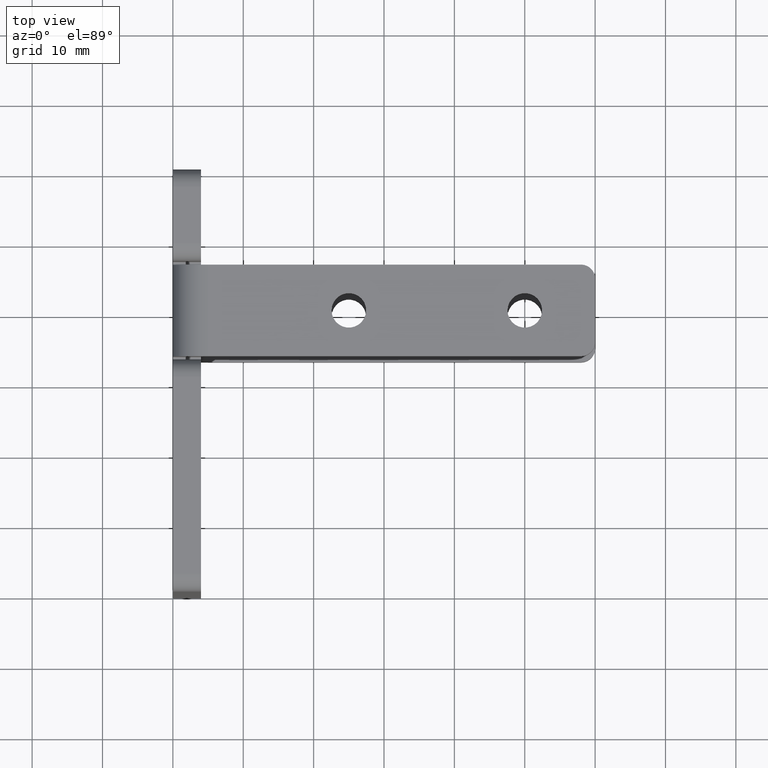
[diagram: clean part render]
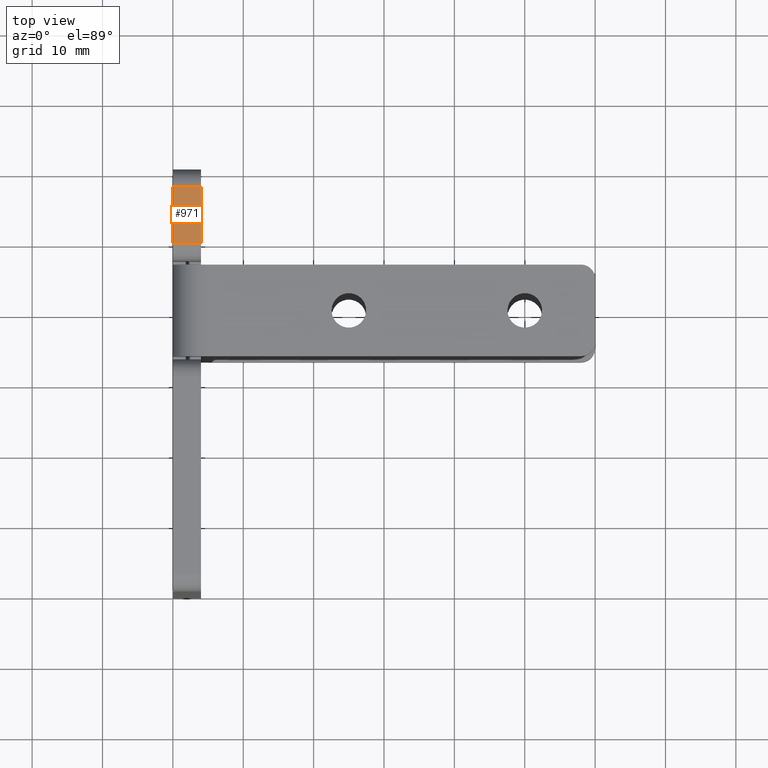
[diagram: same view with one face highlighted and labeled with its STEP entity id]
A machine part, top view. The second image highlights one B-rep face of the part: STEP entity #971.
In plain terms, the highlighted planar face has unit normal (0, -0, 1).
Its self-contained STEP definition (entity closure, byte-faithful):
#25=PLANE('',#1048);
#56=FACE_OUTER_BOUND('',#111,.T.);
#111=EDGE_LOOP('',(#657,#658,#659,#660));
#175=LINE('',#1470,#268);
#177=LINE('',#1476,#270);
#178=LINE('',#1478,#271);
#179=LINE('',#1479,#272);
#268=VECTOR('',#1159,10.);
#270=VECTOR('',#1165,10.);
#271=VECTOR('',#1166,10.);
#272=VECTOR('',#1167,10.);
#415=VERTEX_POINT('',#1467);
#416=VERTEX_POINT('',#1469);
#418=VERTEX_POINT('',#1475);
#419=VERTEX_POINT('',#1477);
#508=EDGE_CURVE('',#415,#416,#175,.T.);
#511=EDGE_CURVE('',#415,#418,#177,.T.);
#512=EDGE_CURVE('',#419,#418,#178,.T.);
#513=EDGE_CURVE('',#419,#416,#179,.T.);
#657=ORIENTED_EDGE('',*,*,#508,.F.);
#658=ORIENTED_EDGE('',*,*,#511,.T.);
#659=ORIENTED_EDGE('',*,*,#512,.F.);
#660=ORIENTED_EDGE('',*,*,#513,.T.);
#971=ADVANCED_FACE('',(#56),#25,.T.);
#1048=AXIS2_PLACEMENT_3D('',#1474,#1163,#1164);
#1159=DIRECTION('',(-1.,0.,0.));
#1163=DIRECTION('center_axis',(0.,-7.40148683083438E-17,1.));
#1164=DIRECTION('ref_axis',(1.,0.,0.));
#1165=DIRECTION('',(0.,1.,7.40148683083438E-17));
#1166=DIRECTION('',(1.,0.,0.));
#1167=DIRECTION('',(0.,-1.,-7.40148683083438E-17));
#1467=CARTESIAN_POINT('',(4.,19.5000000000001,30.));
#1469=CARTESIAN_POINT('',(0.,19.5000000000001,30.));
#1470=CARTESIAN_POINT('',(0.,19.5000000000001,30.));
#1474=CARTESIAN_POINT('Origin',(0.,-30.,30.));
#1475=CARTESIAN_POINT('',(4.,27.5,30.));
#1476=CARTESIAN_POINT('',(4.,30.,30.));
#1477=CARTESIAN_POINT('',(0.,27.5,30.));
#1478=CARTESIAN_POINT('',(0.,27.5,30.));
#1479=CARTESIAN_POINT('',(0.,30.,30.));